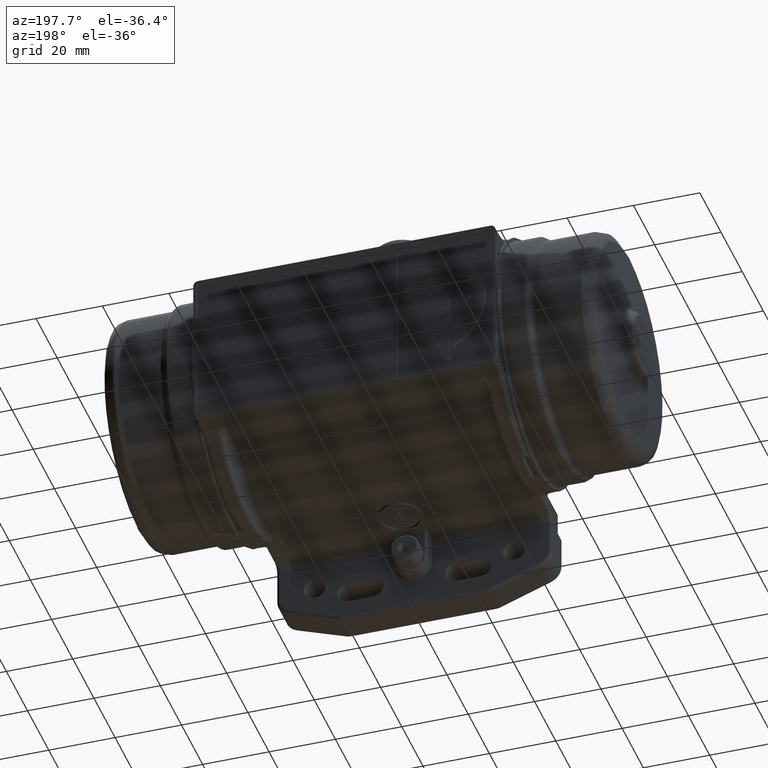
[diagram: clean part render]
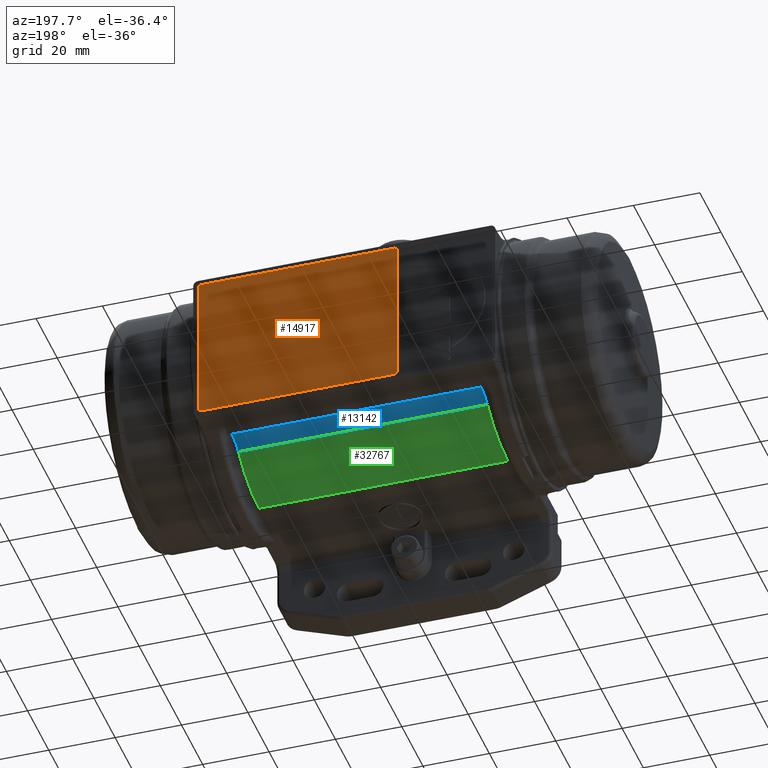
[diagram: same view with three faces highlighted in distinct colors, each labeled with its STEP entity id]
A machine part, auxiliary view with three faces highlighted in distinct colors.
Their STEP definitions:

[orange] entity #14917 — the highlighted planar face has unit normal (0, -1, 0).
#8468 = CARTESIAN_POINT ( 'NONE',  ( -16.00000000000000000, 37.00000000000000000, 21.50000000000000000 ) ) ;
#8523 = DIRECTION ( 'NONE',  ( -1.000000000000000000, 0.0000000000000000000, 1.734723475976804900E-016 ) ) ;
#8524 = VECTOR ( 'NONE', #8523, 1000.000000000000000 ) ;
#8525 = CARTESIAN_POINT ( 'NONE',  ( 44.00000000000000000, 37.00000000000000000, -22.50000000000000000 ) ) ;
#8526 = LINE ( 'NONE', #8525, #8524 ) ;
#8586 = DIRECTION ( 'NONE',  ( 1.541976423090494900E-016, 0.0000000000000000000, 1.000000000000000000 ) ) ;
#8587 = VECTOR ( 'NONE', #8586, 1000.000000000000000 ) ;
#8588 = CARTESIAN_POINT ( 'NONE',  ( -16.00000000000000000, 37.00000000000000000, -22.50000000000000000 ) ) ;
#8589 = LINE ( 'NONE', #8588, #8587 ) ;
#14917 = ADVANCED_FACE ( 'NONE', ( #22819 ), #22863, .F. ) ;
#14918 = ORIENTED_EDGE ( 'NONE', *, *, #15284, .T. ) ;
#14991 = VERTEX_POINT ( 'NONE', #23001 ) ;
#15154 = EDGE_CURVE ( 'NONE', #14991, #18808, #25121, .T. ) ;
#15284 = EDGE_CURVE ( 'NONE', #16076, #14991, #25439, .T. ) ;
#15295 = EDGE_CURVE ( 'NONE', #18819, #21681, #25498, .T. ) ;
#15304 = ORIENTED_EDGE ( 'NONE', *, *, #16081, .T. ) ;
#15305 = ORIENTED_EDGE ( 'NONE', *, *, #21071, .T. ) ;
#16072 = EDGE_LOOP ( 'NONE', ( #16115, #14918, #16075, #16082, #16110, #16094, #15304, #15305 ) ) ;
#16075 = ORIENTED_EDGE ( 'NONE', *, *, #15154, .T. ) ;
#16076 = VERTEX_POINT ( 'NONE', #8468 ) ;
#16081 = EDGE_CURVE ( 'NONE', #21762, #19987, #8526, .T. ) ;
#16082 = ORIENTED_EDGE ( 'NONE', *, *, #17921, .T. ) ;
#16094 = ORIENTED_EDGE ( 'NONE', *, *, #21031, .T. ) ;
#16109 = EDGE_CURVE ( 'NONE', #21233, #16076, #8589, .T. ) ;
#16110 = ORIENTED_EDGE ( 'NONE', *, *, #15295, .T. ) ;
#16115 = ORIENTED_EDGE ( 'NONE', *, *, #16109, .T. ) ;
#17921 = EDGE_CURVE ( 'NONE', #18808, #18819, #25799, .T. ) ;
#18808 = VERTEX_POINT ( 'NONE', #26061 ) ;
#18819 = VERTEX_POINT ( 'NONE', #26138 ) ;
#19987 = VERTEX_POINT ( 'NONE', #26823 ) ;
#21031 = EDGE_CURVE ( 'NONE', #21681, #21762, #27264, .T. ) ;
#21071 = EDGE_CURVE ( 'NONE', #19987, #21233, #27537, .T. ) ;
#21233 = VERTEX_POINT ( 'NONE', #27507 ) ;
#21681 = VERTEX_POINT ( 'NONE', #28228 ) ;
#21762 = VERTEX_POINT ( 'NONE', #28185 ) ;
#22814 = AXIS2_PLACEMENT_3D ( 'NONE', #22818, #22864, #22849 ) ;
#22818 = CARTESIAN_POINT ( 'NONE',  ( 44.00000000000000000, 37.00000000000000000, -22.50000000000000000 ) ) ;
#22819 = FACE_OUTER_BOUND ( 'NONE', #16072, .T. ) ;
#22849 = DIRECTION ( 'NONE',  ( 0.0000000000000000000, 0.0000000000000000000, -1.000000000000000000 ) ) ;
#22863 = PLANE ( 'NONE',  #22814 ) ;
#22864 = DIRECTION ( 'NONE',  ( 0.0000000000000000000, -1.000000000000000000, 0.0000000000000000000 ) ) ;
#23001 = CARTESIAN_POINT ( 'NONE',  ( -15.00000000000000000, 37.00000000000000000, 22.50000000000000000 ) ) ;
#25118 = DIRECTION ( 'NONE',  ( 1.000000000000000000, 0.0000000000000000000, -1.156482317317872000E-016 ) ) ;
#25119 = VECTOR ( 'NONE', #25118, 1000.000000000000000 ) ;
#25120 = CARTESIAN_POINT ( 'NONE',  ( 44.00000000000000000, 37.00000000000000000, 22.50000000000000000 ) ) ;
#25121 = LINE ( 'NONE', #25120, #25119 ) ;
#25439 = CIRCLE ( 'NONE', #25460, 1.000000000000000900 ) ;
#25460 = AXIS2_PLACEMENT_3D ( 'NONE', #25474, #25518, #25517 ) ;
#25474 = CARTESIAN_POINT ( 'NONE',  ( -15.00000000000000000, 37.00000000000000000, 21.50000000000000000 ) ) ;
#25495 = DIRECTION ( 'NONE',  ( -1.541976423090494900E-016, 0.0000000000000000000, -1.000000000000000000 ) ) ;
#25496 = VECTOR ( 'NONE', #25495, 1000.000000000000000 ) ;
#25497 = CARTESIAN_POINT ( 'NONE',  ( 44.00000000000000000, 37.00000000000000000, -22.50000000000000000 ) ) ;
#25498 = LINE ( 'NONE', #25497, #25496 ) ;
#25517 = DIRECTION ( 'NONE',  ( 0.0000000000000000000, 0.0000000000000000000, -1.000000000000000000 ) ) ;
#25518 = DIRECTION ( 'NONE',  ( -0.0000000000000000000, 1.000000000000000000, -0.0000000000000000000 ) ) ;
#25790 = DIRECTION ( 'NONE',  ( 0.0000000000000000000, 0.0000000000000000000, -1.000000000000000000 ) ) ;
#25791 = DIRECTION ( 'NONE',  ( -0.0000000000000000000, 1.000000000000000000, -0.0000000000000000000 ) ) ;
#25792 = CARTESIAN_POINT ( 'NONE',  ( 43.00000000000000000, 37.00000000000000000, 21.50000000000000000 ) ) ;
#25793 = AXIS2_PLACEMENT_3D ( 'NONE', #25792, #25791, #25790 ) ;
#25799 = CIRCLE ( 'NONE', #25793, 1.000000000000000900 ) ;
#26061 = CARTESIAN_POINT ( 'NONE',  ( 43.00000000000000000, 37.00000000000000000, 22.50000000000000000 ) ) ;
#26138 = CARTESIAN_POINT ( 'NONE',  ( 44.00000000000000000, 37.00000000000000000, 21.50000000000000000 ) ) ;
#26823 = CARTESIAN_POINT ( 'NONE',  ( -15.00000000000000000, 37.00000000000000000, -22.50000000000000000 ) ) ;
#27232 = DIRECTION ( 'NONE',  ( 0.0000000000000000000, 0.0000000000000000000, -1.000000000000000000 ) ) ;
#27233 = DIRECTION ( 'NONE',  ( -0.0000000000000000000, 1.000000000000000000, -0.0000000000000000000 ) ) ;
#27234 = CARTESIAN_POINT ( 'NONE',  ( 43.00000000000000000, 37.00000000000000000, -21.50000000000000000 ) ) ;
#27244 = AXIS2_PLACEMENT_3D ( 'NONE', #27234, #27233, #27232 ) ;
#27264 = CIRCLE ( 'NONE', #27244, 1.000000000000000900 ) ;
#27421 = CARTESIAN_POINT ( 'NONE',  ( -15.00000000000000000, 37.00000000000000000, -21.50000000000000000 ) ) ;
#27507 = CARTESIAN_POINT ( 'NONE',  ( -16.00000000000000000, 37.00000000000000000, -21.50000000000000000 ) ) ;
#27517 = DIRECTION ( 'NONE',  ( 0.0000000000000000000, 0.0000000000000000000, -1.000000000000000000 ) ) ;
#27518 = DIRECTION ( 'NONE',  ( -0.0000000000000000000, 1.000000000000000000, -0.0000000000000000000 ) ) ;
#27537 = CIRCLE ( 'NONE', #27541, 1.000000000000000900 ) ;
#27541 = AXIS2_PLACEMENT_3D ( 'NONE', #27421, #27518, #27517 ) ;
#28185 = CARTESIAN_POINT ( 'NONE',  ( 43.00000000000000000, 37.00000000000000000, -22.50000000000000000 ) ) ;
#28228 = CARTESIAN_POINT ( 'NONE',  ( 44.00000000000000000, 37.00000000000000000, -21.50000000000000000 ) ) ;

[blue] entity #13142 — the highlighted cylindrical surface (edge-blend (fillet) strip) has radius 10 mm, axis along (-1, 0, 0).
#6771 = ORIENTED_EDGE ( 'NONE', *, *, #21652, .T. ) ;
#6772 = EDGE_CURVE ( 'NONE', #21636, #15597, #24837, .T. ) ;
#6782 = ORIENTED_EDGE ( 'NONE', *, *, #38922, .F. ) ;
#7769 = AXIS2_PLACEMENT_3D ( 'NONE', #7798, #7797, #7796 ) ;
#7796 = DIRECTION ( 'NONE',  ( 0.0000000000000000000, 0.0000000000000000000, -1.000000000000000000 ) ) ;
#7797 = DIRECTION ( 'NONE',  ( -1.000000000000000000, -0.0000000000000000000, -0.0000000000000000000 ) ) ;
#7798 = CARTESIAN_POINT ( 'NONE',  ( -37.50000000000000000, 25.50000000000000000, -34.00000000000000000 ) ) ;
#7802 = CIRCLE ( 'NONE', #7769, 10.00000000000000200 ) ;
#7849 = CARTESIAN_POINT ( 'NONE',  ( -37.50000000000000000, 25.50000000000000000, -24.00000000000000000 ) ) ;
#9226 = CARTESIAN_POINT ( 'NONE',  ( -37.50000000000000000, 19.50000000000000000, -26.00000000000000000 ) ) ;
#13024 = ORIENTED_EDGE ( 'NONE', *, *, #6772, .F. ) ;
#13025 = ORIENTED_EDGE ( 'NONE', *, *, #15589, .T. ) ;
#13080 = EDGE_LOOP ( 'NONE', ( #6782, #13025, #13024, #6771 ) ) ;
#13142 = ADVANCED_FACE ( 'NONE', ( #16333 ), #16340, .F. ) ;
#15589 = EDGE_CURVE ( 'NONE', #16227, #15597, #7802, .T. ) ;
#15597 = VERTEX_POINT ( 'NONE', #7849 ) ;
#16227 = VERTEX_POINT ( 'NONE', #9226 ) ;
#16327 = CARTESIAN_POINT ( 'NONE',  ( 58.00000000000000000, 25.50000000000000000, -34.00000000000000000 ) ) ;
#16328 = AXIS2_PLACEMENT_3D ( 'NONE', #16327, #16335, #16334 ) ;
#16333 = FACE_OUTER_BOUND ( 'NONE', #13080, .T. ) ;
#16334 = DIRECTION ( 'NONE',  ( 0.0000000000000000000, 0.0000000000000000000, 1.000000000000000000 ) ) ;
#16335 = DIRECTION ( 'NONE',  ( -1.000000000000000000, 0.0000000000000000000, 0.0000000000000000000 ) ) ;
#16340 = CYLINDRICAL_SURFACE ( 'NONE', #16328, 10.00000000000000200 ) ;
#21636 = VERTEX_POINT ( 'NONE', #28177 ) ;
#21652 = EDGE_CURVE ( 'NONE', #21636, #24034, #28074, .T. ) ;
#24034 = VERTEX_POINT ( 'NONE', #30718 ) ;
#24832 = DIRECTION ( 'NONE',  ( -1.000000000000000000, -0.0000000000000000000, -0.0000000000000000000 ) ) ;
#24834 = VECTOR ( 'NONE', #24832, 1000.000000000000000 ) ;
#24835 = CARTESIAN_POINT ( 'NONE',  ( -39.50000000000000000, 25.50000000000000000, -24.00000000000000000 ) ) ;
#24837 = LINE ( 'NONE', #24835, #24834 ) ;
#28074 = CIRCLE ( 'NONE', #28147, 10.00000000000000200 ) ;
#28132 = DIRECTION ( 'NONE',  ( 0.0000000000000000000, 0.0000000000000000000, -1.000000000000000000 ) ) ;
#28133 = DIRECTION ( 'NONE',  ( 1.000000000000000000, 0.0000000000000000000, 0.0000000000000000000 ) ) ;
#28137 = CARTESIAN_POINT ( 'NONE',  ( 37.50000000000000000, 25.50000000000000000, -34.00000000000000000 ) ) ;
#28147 = AXIS2_PLACEMENT_3D ( 'NONE', #28137, #28133, #28132 ) ;
#28177 = CARTESIAN_POINT ( 'NONE',  ( 37.50000000000000000, 25.50000000000000000, -24.00000000000000000 ) ) ;
#30718 = CARTESIAN_POINT ( 'NONE',  ( 37.50000000000000000, 19.50000000000000000, -26.00000000000000000 ) ) ;
#38556 = DIRECTION ( 'NONE',  ( 1.000000000000000000, -0.0000000000000000000, -0.0000000000000000000 ) ) ;
#38557 = VECTOR ( 'NONE', #38556, 1000.000000000000000 ) ;
#38558 = CARTESIAN_POINT ( 'NONE',  ( 58.00000000000000000, 19.50000000000000000, -26.00000000000000000 ) ) ;
#38577 = LINE ( 'NONE', #38558, #38557 ) ;
#38922 = EDGE_CURVE ( 'NONE', #16227, #24034, #38577, .T. ) ;

[green] entity #32767 — the highlighted cylindrical surface (partial cylindrical patch) has radius 32.5 mm, axis along (-1, 0, 0).
#7927 = DIRECTION ( 'NONE',  ( 1.000000000000000000, 0.0000000000000000000, 0.0000000000000000000 ) ) ;
#7959 = DIRECTION ( 'NONE',  ( 0.0000000000000000000, 0.0000000000000000000, -1.000000000000000000 ) ) ;
#7967 = CARTESIAN_POINT ( 'NONE',  ( -37.50000000000000000, 0.0000000000000000000, 0.0000000000000000000 ) ) ;
#7969 = CIRCLE ( 'NONE', #7972, 32.50000000000000000 ) ;
#7972 = AXIS2_PLACEMENT_3D ( 'NONE', #7967, #7927, #7959 ) ;
#9226 = CARTESIAN_POINT ( 'NONE',  ( -37.50000000000000000, 19.50000000000000000, -26.00000000000000000 ) ) ;
#15650 = EDGE_CURVE ( 'NONE', #22300, #16227, #7969, .T. ) ;
#16227 = VERTEX_POINT ( 'NONE', #9226 ) ;
#21637 = EDGE_CURVE ( 'NONE', #24034, #22554, #28078, .T. ) ;
#22300 = VERTEX_POINT ( 'NONE', #29322 ) ;
#22554 = VERTEX_POINT ( 'NONE', #29912 ) ;
#24034 = VERTEX_POINT ( 'NONE', #30718 ) ;
#26028 = ORIENTED_EDGE ( 'NONE', *, *, #21637, .T. ) ;
#28078 = CIRCLE ( 'NONE', #28163, 32.50000000000000000 ) ;
#28160 = DIRECTION ( 'NONE',  ( 0.0000000000000000000, 8.881784197001252300E-016, -1.000000000000000000 ) ) ;
#28162 = DIRECTION ( 'NONE',  ( -1.000000000000000000, -0.0000000000000000000, -0.0000000000000000000 ) ) ;
#28163 = AXIS2_PLACEMENT_3D ( 'NONE', #28172, #28162, #28160 ) ;
#28172 = CARTESIAN_POINT ( 'NONE',  ( 37.50000000000000000, 0.0000000000000000000, 0.0000000000000000000 ) ) ;
#29322 = CARTESIAN_POINT ( 'NONE',  ( -37.50000000000000000, 0.0000000000000000000, -32.50000000000000000 ) ) ;
#29912 = CARTESIAN_POINT ( 'NONE',  ( 37.50000000000000000, 0.0000000000000000000, -32.50000000000000000 ) ) ;
#30718 = CARTESIAN_POINT ( 'NONE',  ( 37.50000000000000000, 19.50000000000000000, -26.00000000000000000 ) ) ;
#31894 = ORIENTED_EDGE ( 'NONE', *, *, #15650, .T. ) ;
#32640 = ORIENTED_EDGE ( 'NONE', *, *, #32725, .T. ) ;
#32725 = EDGE_CURVE ( 'NONE', #22554, #22300, #36262, .T. ) ;
#32757 = ORIENTED_EDGE ( 'NONE', *, *, #38922, .T. ) ;
#32767 = ADVANCED_FACE ( 'NONE', ( #36333 ), #36334, .T. ) ;
#32773 = EDGE_LOOP ( 'NONE', ( #32640, #31894, #32757, #26028 ) ) ;
#36259 = DIRECTION ( 'NONE',  ( -1.000000000000000000, 0.0000000000000000000, 8.360113137237618800E-017 ) ) ;
#36260 = VECTOR ( 'NONE', #36259, 1000.000000000000000 ) ;
#36261 = CARTESIAN_POINT ( 'NONE',  ( -41.50000000000000000, 0.0000000000000000000, -32.50000000000000000 ) ) ;
#36262 = LINE ( 'NONE', #36261, #36260 ) ;
#36308 = DIRECTION ( 'NONE',  ( 0.0000000000000000000, 0.0000000000000000000, 1.000000000000000000 ) ) ;
#36317 = AXIS2_PLACEMENT_3D ( 'NONE', #36321, #36320, #36308 ) ;
#36320 = DIRECTION ( 'NONE',  ( -1.000000000000000000, 0.0000000000000000000, 0.0000000000000000000 ) ) ;
#36321 = CARTESIAN_POINT ( 'NONE',  ( 58.00000000000000000, 0.0000000000000000000, 0.0000000000000000000 ) ) ;
#36333 = FACE_OUTER_BOUND ( 'NONE', #32773, .T. ) ;
#36334 = CYLINDRICAL_SURFACE ( 'NONE', #36317, 32.50000000000000000 ) ;
#38556 = DIRECTION ( 'NONE',  ( 1.000000000000000000, -0.0000000000000000000, -0.0000000000000000000 ) ) ;
#38557 = VECTOR ( 'NONE', #38556, 1000.000000000000000 ) ;
#38558 = CARTESIAN_POINT ( 'NONE',  ( 58.00000000000000000, 19.50000000000000000, -26.00000000000000000 ) ) ;
#38577 = LINE ( 'NONE', #38558, #38557 ) ;
#38922 = EDGE_CURVE ( 'NONE', #16227, #24034, #38577, .T. ) ;